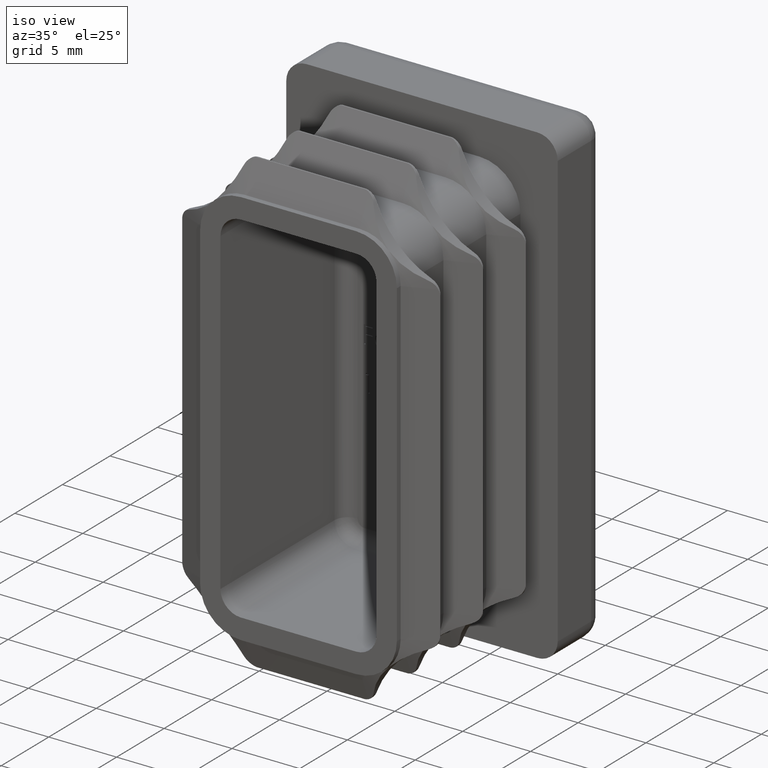
[diagram: clean part render]
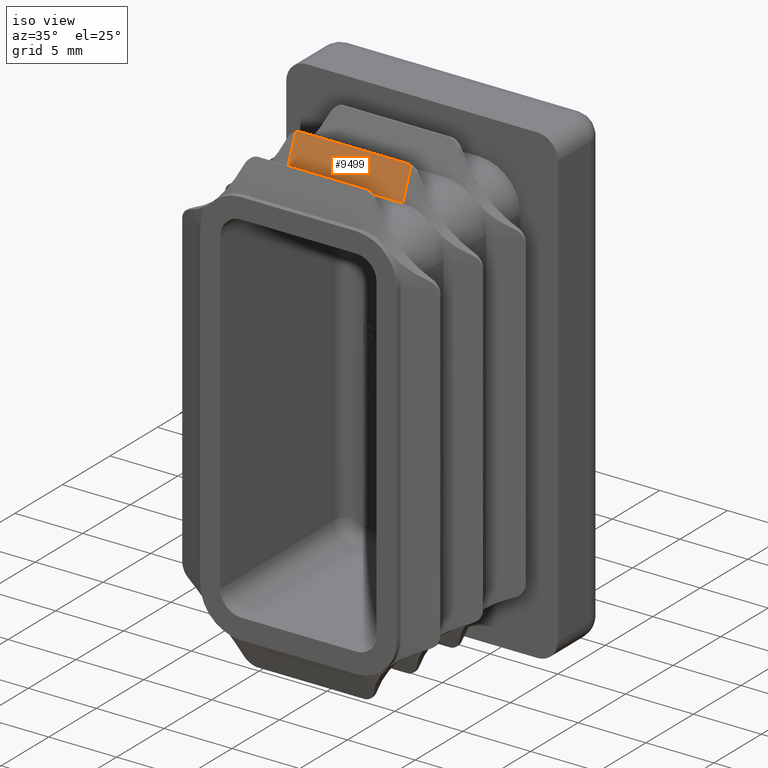
[diagram: same view with one face highlighted and labeled with its STEP entity id]
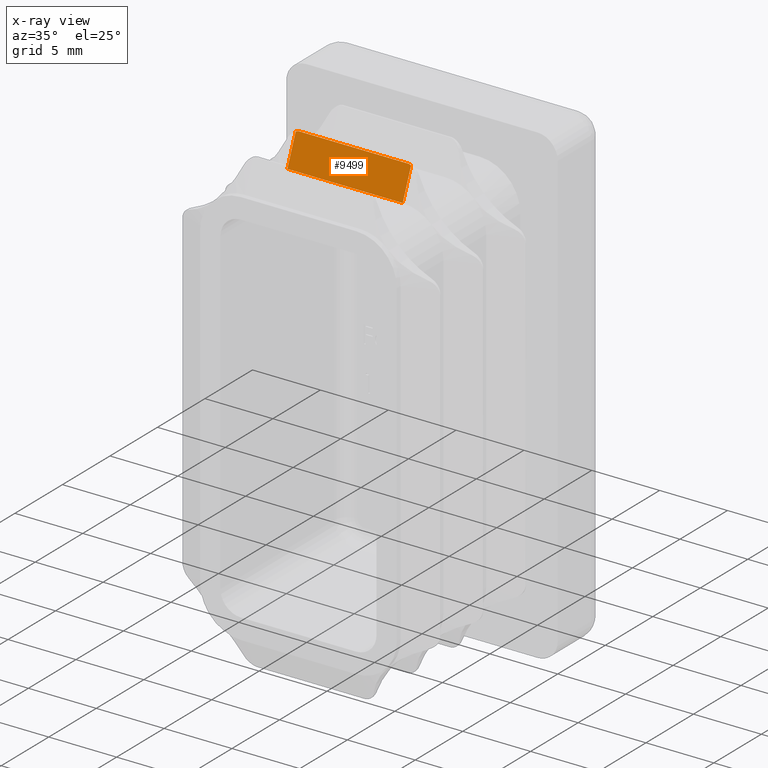
[diagram: x-ray of the same camera — body ghosted, the highlighted face saturated]
A machine part, iso view. The second image highlights one B-rep face of the part: STEP entity #9499.
The next image is the same camera in x-ray: the body ghosted, the highlighted face saturated — about 0% of this face is hidden behind the body in this view.
In plain terms, the highlighted planar face has unit normal (0, 0.9261, -0.3772).
Its self-contained STEP definition (entity closure, byte-faithful):
#4 = EDGE_CURVE ( 'NONE', #6696, #11603, #12503, .T. ) ;
#167 = CARTESIAN_POINT ( 'NONE',  ( 4.249999999999996447, -7.196306707551699766, 16.96885971462464937 ) ) ;
#822 = VERTEX_POINT ( 'NONE', #14859 ) ;
#1584 = CARTESIAN_POINT ( 'NONE',  ( -4.250000000000003553, -7.196306707551699766, 16.96885971462464582 ) ) ;
#1664 = ORIENTED_EDGE ( 'NONE', *, *, #11466, .T. ) ;
#3893 = CARTESIAN_POINT ( 'NONE',  ( -4.196020627124105395, -7.210327619861040205, 16.93443383391328894 ) ) ;
#4089 = CARTESIAN_POINT ( 'NONE',  ( -4.250000000000003553, -8.099999999999999645, 14.75000000000004086 ) ) ;
#4511 = PLANE ( 'NONE',  #16748 ) ;
#4580 = CARTESIAN_POINT ( 'NONE',  ( -4.250000000000003553, -7.196306707551699766, 16.96885971462464582 ) ) ;
#4863 = ORIENTED_EDGE ( 'NONE', *, *, #16287, .F. ) ;
#4948 = CARTESIAN_POINT ( 'NONE',  ( 4.249999999999997335, -8.100000000000019185, 14.75000000000000355 ) ) ;
#5039 = CARTESIAN_POINT ( 'NONE',  ( -4.082585898887363562, -7.196306707551701543, 16.96885971462464582 ) ) ;
#5762 = CARTESIAN_POINT ( 'NONE',  ( -4.250000000000003553, -7.196306707551700654, 16.96885971462464582 ) ) ;
#5796 = CARTESIAN_POINT ( 'NONE',  ( 4.082585898887351128, -7.196306707551701543, 16.96885971462464937 ) ) ;
#5865 = ORIENTED_EDGE ( 'NONE', *, *, #7143, .F. ) ;
#6337 = CARTESIAN_POINT ( 'NONE',  ( 4.196020627124097402, -7.210327619861041093, 16.93443383391328894 ) ) ;
#6585 = LINE ( 'NONE', #5762, #13484 ) ;
#6696 = VERTEX_POINT ( 'NONE', #7477 ) ;
#6937 = EDGE_CURVE ( 'NONE', #16474, #13037, #6585, .T. ) ;
#7143 = EDGE_CURVE ( 'NONE', #13037, #13267, #10432, .T. ) ;
#7194 = VECTOR ( 'NONE', #15416, 1000.000000000000114 ) ;
#7477 = CARTESIAN_POINT ( 'NONE',  ( -4.250000000000002665, -8.100000000000017408, 14.75000000000000178 ) ) ;
#7519 = VECTOR ( 'NONE', #16389, 1000.000000000000000 ) ;
#7905 = ORIENTED_EDGE ( 'NONE', *, *, #16592, .T. ) ;
#8350 = CARTESIAN_POINT ( 'NONE',  ( -4.140068695615269689, -7.202289953917576426, 16.95416890698574974 ) ) ;
#8883 = LINE ( 'NONE', #4580, #7194 ) ;
#9269 = DIRECTION ( 'NONE',  ( 1.539594809859441808E-16, 0.9261341510340123095, -0.3771942924919585716 ) ) ;
#9423 = ORIENTED_EDGE ( 'NONE', *, *, #4, .T. ) ;
#9499 = ADVANCED_FACE ( 'NONE', ( #16265 ), #4511, .F. ) ;
#10432 =( BOUNDED_CURVE ( )  B_SPLINE_CURVE ( 3, ( #12328, #15493, #6337, #18472 ),
 .UNSPECIFIED., .F., .F. ) 
 B_SPLINE_CURVE_WITH_KNOTS ( ( 4, 4 ),
 ( 3.391805605384512479, 3.569562260223694050 ),
 .UNSPECIFIED. ) 
 CURVE ( )  GEOMETRIC_REPRESENTATION_ITEM ( )  RATIONAL_B_SPLINE_CURVE ( ( 1.000000000000000000, 0.9973686138443111915, 0.9973686138443111915, 1.000000000000000000 ) ) 
 REPRESENTATION_ITEM ( '' )  );
#10668 = EDGE_LOOP ( 'NONE', ( #5865, #19444, #7905, #4863, #9423, #1664 ) ) ;
#10784 = DIRECTION ( 'NONE',  ( -1.729242205487101118E-16, 0.3771942924919585716, 0.9261341510340123095 ) ) ;
#11466 = EDGE_CURVE ( 'NONE', #11603, #13267, #14068, .T. ) ;
#11603 = VERTEX_POINT ( 'NONE', #4948 ) ;
#12328 = CARTESIAN_POINT ( 'NONE',  ( 4.082585898887351128, -7.196306707551701543, 16.96885971462464937 ) ) ;
#12503 = LINE ( 'NONE', #4089, #7519 ) ;
#12902 = CARTESIAN_POINT ( 'NONE',  ( -4.250000000000003553, -7.220356254773427018, 16.90981028720145574 ) ) ;
#13037 = VERTEX_POINT ( 'NONE', #5796 ) ;
#13138 = VECTOR ( 'NONE', #10784, 1000.000000000000114 ) ;
#13267 = VERTEX_POINT ( 'NONE', #14565 ) ;
#13484 = VECTOR ( 'NONE', #19222, 1000.000000000000000 ) ;
#14068 = LINE ( 'NONE', #167, #13138 ) ;
#14565 = CARTESIAN_POINT ( 'NONE',  ( 4.249999999999996447, -7.220356254773427906, 16.90981028720145574 ) ) ;
#14615 = CARTESIAN_POINT ( 'NONE',  ( -4.082585898887363562, -7.196306707551701543, 16.96885971462464582 ) ) ;
#14859 = CARTESIAN_POINT ( 'NONE',  ( -4.250000000000003553, -7.220356254773427018, 16.90981028720145574 ) ) ;
#15416 = DIRECTION ( 'NONE',  ( 2.050961685577724891E-16, 0.3771942924919585716, 0.9261341510340123095 ) ) ;
#15493 = CARTESIAN_POINT ( 'NONE',  ( 4.140068695615259031, -7.202289953917577314, 16.95416890698575330 ) ) ;
#16265 = FACE_OUTER_BOUND ( 'NONE', #10668, .T. ) ;
#16287 = EDGE_CURVE ( 'NONE', #6696, #822, #8883, .T. ) ;
#16389 = DIRECTION ( 'NONE',  ( 1.000000000000000000, 0.000000000000000000, 4.081702296416016490E-16 ) ) ;
#16474 = VERTEX_POINT ( 'NONE', #5039 ) ;
#16506 =( BOUNDED_CURVE ( )  B_SPLINE_CURVE ( 3, ( #14615, #8350, #3893, #12902 ),
 .UNSPECIFIED., .F., .F. ) 
 B_SPLINE_CURVE_WITH_KNOTS ( ( 4, 4 ),
 ( 3.391805605384524025, 3.569562260223698935 ),
 .UNSPECIFIED. ) 
 CURVE ( )  GEOMETRIC_REPRESENTATION_ITEM ( )  RATIONAL_B_SPLINE_CURVE ( ( 1.000000000000000000, 0.9973686138443114135, 0.9973686138443114135, 1.000000000000000000 ) ) 
 REPRESENTATION_ITEM ( '' )  );
#16592 = EDGE_CURVE ( 'NONE', #16474, #822, #16506, .T. ) ;
#16748 = AXIS2_PLACEMENT_3D ( 'NONE', #1584, #9269, #18140 ) ;
#18140 = DIRECTION ( 'NONE',  ( 0.000000000000000000, 0.3771942924919585716, 0.9261341510340123095 ) ) ;
#18472 = CARTESIAN_POINT ( 'NONE',  ( 4.249999999999996447, -7.220356254773427906, 16.90981028720145574 ) ) ;
#19222 = DIRECTION ( 'NONE',  ( 1.000000000000000000, 0.000000000000000000, 4.081702296416016490E-16 ) ) ;
#19444 = ORIENTED_EDGE ( 'NONE', *, *, #6937, .F. ) ;